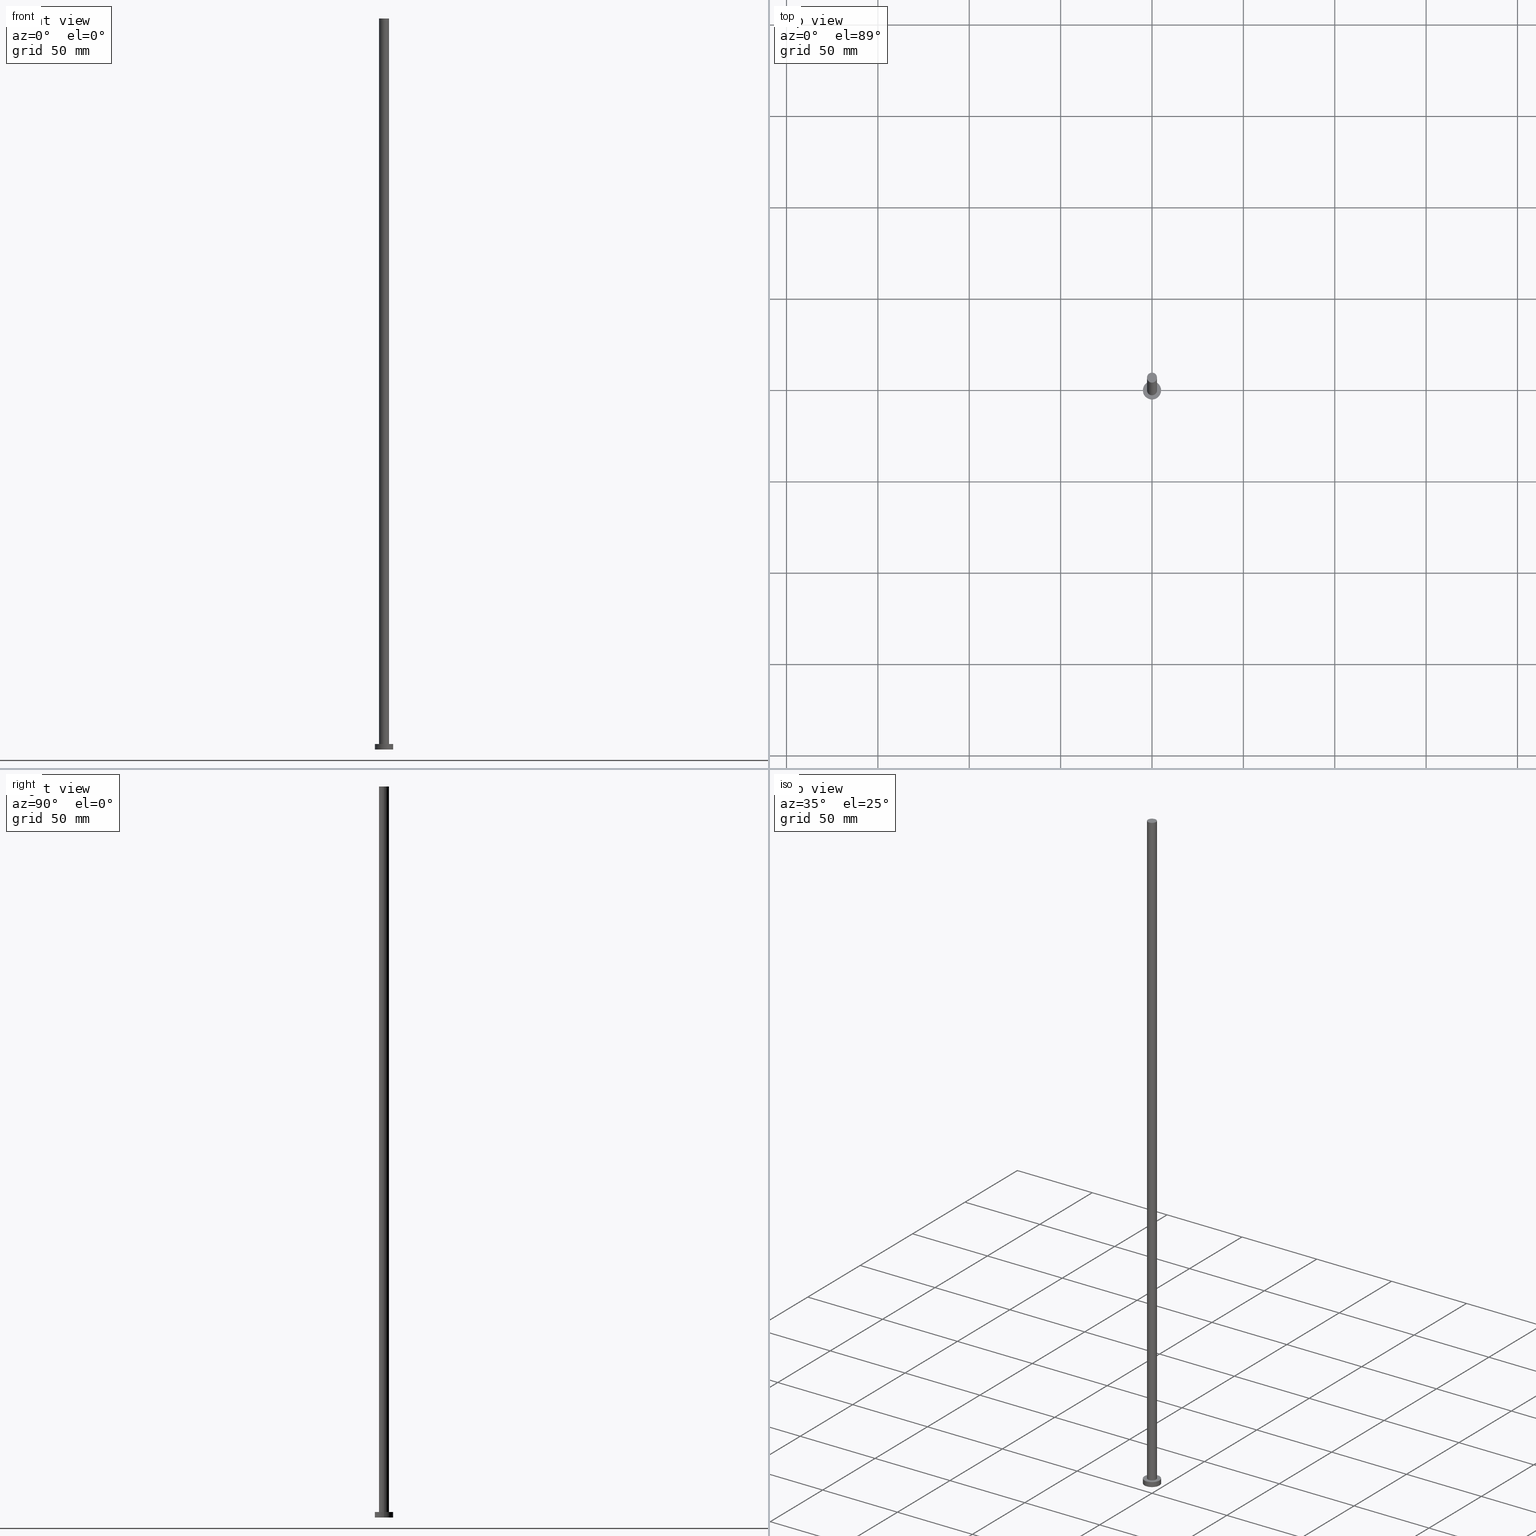
[diagram: canonical four-view strip — front | top / right | iso, engineering-drawing reading convention]
A machine part, canonical four-view strip (front | top / right | iso — engineering-drawing reading convention). The complete STEP part file that produces these views, byte-faithful:
ISO-10303-21;
HEADER;
FILE_DESCRIPTION (( 'STEP AP203' ),
    '1' );
FILE_NAME ('a8be.STEP',
    '2023-02-12T12:21:04',
    ( '' ),
    ( '' ),
    'SwSTEP 2.0',
    'SolidWorks 2019',
    '' );
FILE_SCHEMA (( 'CONFIG_CONTROL_DESIGN' ));
ENDSEC;

DATA;
#1 = ORIENTED_EDGE ( 'NONE', *, *, #108, .T. ) ;
#2 = DIRECTION ( 'NONE',  ( 1.000000000000000000, 0.000000000000000000, -0.000000000000000000 ) ) ;
#3 = CC_DESIGN_PERSON_AND_ORGANIZATION_ASSIGNMENT ( #64, #183, ( #40 ) ) ;
#4 = DIRECTION ( 'NONE',  ( 1.000000000000000000, 0.000000000000000000, 0.000000000000000000 ) ) ;
#5 = PERSON_AND_ORGANIZATION_ROLE ( 'classification_officer' ) ;
#6 = CARTESIAN_POINT ( 'NONE',  ( 0.000000000000000000, 0.000000000000000000, 0.000000000000000000 ) ) ;
#7 = PERSON_AND_ORGANIZATION_ROLE ( 'creator' ) ;
#8 = DIRECTION ( 'NONE',  ( 0.000000000000000000, 0.000000000000000000, 1.000000000000000000 ) ) ;
#9 = COORDINATED_UNIVERSAL_TIME_OFFSET ( 1, 0, .AHEAD. ) ;
#10 = DIRECTION ( 'NONE',  ( 1.000000000000000000, 0.000000000000000000, 0.000000000000000000 ) ) ;
#11 = VECTOR ( 'NONE', #160, 1000.000000000000000 ) ;
#12 = CC_DESIGN_APPROVAL ( #148, ( #72 ) ) ;
#13 = APPLICATION_CONTEXT ( 'configuration controlled 3d designs of mechanical parts and assemblies' ) ;
#14 = APPROVAL ( #82, 'NEUR�EN�' ) ;
#15 = CARTESIAN_POINT ( 'NONE',  ( -5.000000000000000000, 0.000000000000000000, 0.000000000000000000 ) ) ;
#16 = FACE_OUTER_BOUND ( 'NONE', #208, .T. ) ;
#17 = CC_DESIGN_PERSON_AND_ORGANIZATION_ASSIGNMENT ( #179, #7, ( #40 ) ) ;
#18 = DIRECTION ( 'NONE',  ( 0.000000000000000000, 0.000000000000000000, 1.000000000000000000 ) ) ;
#19 = AXIS2_PLACEMENT_3D ( 'NONE', #33, #105, #58 ) ;
#20 = DIRECTION ( 'NONE',  ( 1.000000000000000000, 0.000000000000000000, -0.000000000000000000 ) ) ;
#21 = APPLICATION_PROTOCOL_DEFINITION ( 'international standard', 'config_control_design', 1994, #13 ) ;
#22 = DIRECTION ( 'NONE',  ( -0.000000000000000000, -0.000000000000000000, -1.000000000000000000 ) ) ;
#23 = PLANE ( 'NONE',  #88 ) ;
#24 = APPROVAL_DATE_TIME ( #167, #148 ) ;
#25 = DATE_AND_TIME ( #178, #140 ) ;
#26 = DATE_AND_TIME ( #202, #177 ) ;
#27 = APPROVAL_STATUS ( 'not_yet_approved' ) ;
#28 = ORIENTED_EDGE ( 'NONE', *, *, #164, .T. ) ;
#29 = EDGE_LOOP ( 'NONE', ( #213, #28 ) ) ;
#30 = DESIGN_CONTEXT ( 'detailed design', #53, 'design' ) ;
#31 = CYLINDRICAL_SURFACE ( 'NONE', #255, 2.750000000000000000 ) ;
#32 = CC_DESIGN_APPROVAL ( #14, ( #40 ) ) ;
#33 = CARTESIAN_POINT ( 'NONE',  ( 0.000000000000000000, 0.000000000000000000, 3.000000000000000000 ) ) ;
#34 = DIRECTION ( 'NONE',  ( 1.000000000000000000, 0.000000000000000000, 0.000000000000000000 ) ) ;
#35 = DIRECTION ( 'NONE',  ( 1.000000000000000000, 0.000000000000000000, 0.000000000000000000 ) ) ;
#36 = CARTESIAN_POINT ( 'NONE',  ( 2.750000000000000000, 3.367778697655221012E-16, 400.0000000000000000 ) ) ;
#37 = FACE_OUTER_BOUND ( 'NONE', #188, .T. ) ;
#38 = EDGE_LOOP ( 'NONE', ( #133, #196, #110, #253 ) ) ;
#39 = FACE_OUTER_BOUND ( 'NONE', #38, .T. ) ;
#40 = PRODUCT_DEFINITION_FORMATION_WITH_SPECIFIED_SOURCE ( 'LIBOVOLN�', '', #146, .NOT_KNOWN. ) ;
#41 = DIRECTION ( 'NONE',  ( -1.000000000000000000, 0.000000000000000000, 0.000000000000000000 ) ) ;
#42 = DIRECTION ( 'NONE',  ( 0.000000000000000000, 0.000000000000000000, 1.000000000000000000 ) ) ;
#43 = AXIS2_PLACEMENT_3D ( 'NONE', #182, #245, #190 ) ;
#44 = EDGE_CURVE ( 'NONE', #139, #128, #239, .T. ) ;
#45 = COORDINATED_UNIVERSAL_TIME_OFFSET ( 1, 0, .AHEAD. ) ;
#46 = ORIENTED_EDGE ( 'NONE', *, *, #115, .T. ) ;
#47 = DIRECTION ( 'NONE',  ( 0.000000000000000000, 0.000000000000000000, 1.000000000000000000 ) ) ;
#48 = APPROVAL_DATE_TIME ( #222, #54 ) ;
#49 = CARTESIAN_POINT ( 'NONE',  ( 5.000000000000000000, 6.123233995736766282E-16, 3.000000000000000000 ) ) ;
#50 = PERSON_AND_ORGANIZATION ( #130, #216 ) ;
#51 = COORDINATED_UNIVERSAL_TIME_OFFSET ( 1, 0, .AHEAD. ) ;
#52 = ORIENTED_EDGE ( 'NONE', *, *, #115, .F. ) ;
#53 = APPLICATION_CONTEXT ( 'configuration controlled 3d designs of mechanical parts and assemblies' ) ;
#54 = APPROVAL ( #243, 'NEUR�EN�' ) ;
#55 =( GEOMETRIC_REPRESENTATION_CONTEXT ( 3 ) GLOBAL_UNCERTAINTY_ASSIGNED_CONTEXT ( ( #77 ) ) GLOBAL_UNIT_ASSIGNED_CONTEXT ( ( #194, #93, #136 ) ) REPRESENTATION_CONTEXT ( 'NONE', 'WORKASPACE' ) );
#56 = DIRECTION ( 'NONE',  ( -0.000000000000000000, -0.000000000000000000, -1.000000000000000000 ) ) ;
#57 = CARTESIAN_POINT ( 'NONE',  ( 2.750000000000000000, 3.367778697655221012E-16, 400.0000000000000000 ) ) ;
#58 = DIRECTION ( 'NONE',  ( 1.000000000000000000, 0.000000000000000000, 0.000000000000000000 ) ) ;
#59 = LINE ( 'NONE', #113, #65 ) ;
#60 = CLOSED_SHELL ( 'NONE', ( #81, #207, #199, #254, #247, #203, #158 ) ) ;
#61 = AXIS2_PLACEMENT_3D ( 'NONE', #97, #42, #2 ) ;
#62 = DIRECTION ( 'NONE',  ( 0.000000000000000000, 0.000000000000000000, 1.000000000000000000 ) ) ;
#63 = EDGE_CURVE ( 'NONE', #128, #92, #157, .T. ) ;
#64 = PERSON_AND_ORGANIZATION ( #130, #216 ) ;
#65 = VECTOR ( 'NONE', #214, 1000.000000000000000 ) ;
#66 = VERTEX_POINT ( 'NONE', #232 ) ;
#67 = CALENDAR_DATE ( 2023, 12, 2 ) ;
#68 = EDGE_CURVE ( 'NONE', #142, #215, #59, .T. ) ;
#69 = COORDINATED_UNIVERSAL_TIME_OFFSET ( 1, 0, .AHEAD. ) ;
#70 = DATE_AND_TIME ( #101, #211 ) ;
#71 = EDGE_LOOP ( 'NONE', ( #120, #153, #248, #1 ) ) ;
#72 = PRODUCT_DEFINITION ( 'NEZN�M�', '', #40, #30 ) ;
#73 = FACE_OUTER_BOUND ( 'NONE', #71, .T. ) ;
#74 = FACE_OUTER_BOUND ( 'NONE', #85, .T. ) ;
#75 = AXIS2_PLACEMENT_3D ( 'NONE', #172, #155, #34 ) ;
#76 = LOCAL_TIME ( 13, 21, 4.000000000000000000, #224 ) ;
#77 = UNCERTAINTY_MEASURE_WITH_UNIT (LENGTH_MEASURE( 1.000000000000000082E-05 ), #194, 'distance_accuracy_value', 'NONE');
#78 = CARTESIAN_POINT ( 'NONE',  ( 5.000000000000000000, 6.123233995736766282E-16, 0.000000000000000000 ) ) ;
#79 = CARTESIAN_POINT ( 'NONE',  ( 0.000000000000000000, 0.000000000000000000, 400.0000000000000000 ) ) ;
#80 = CARTESIAN_POINT ( 'NONE',  ( -5.000000000000000000, 0.000000000000000000, 3.000000000000000000 ) ) ;
#81 = ADVANCED_FACE ( 'NONE', ( #16 ), #174, .T. ) ;
#82 = APPROVAL_STATUS ( 'not_yet_approved' ) ;
#83 = CIRCLE ( 'NONE', #43, 2.750000000000000000 ) ;
#84 = CC_DESIGN_APPROVAL ( #54, ( #111 ) ) ;
#85 = EDGE_LOOP ( 'NONE', ( #210, #122 ) ) ;
#86 = SHAPE_DEFINITION_REPRESENTATION ( #103, #137 ) ;
#87 = CIRCLE ( 'NONE', #165, 5.000000000000000000 ) ;
#88 = AXIS2_PLACEMENT_3D ( 'NONE', #163, #197, #20 ) ;
#89 = CARTESIAN_POINT ( 'NONE',  ( 0.000000000000000000, 0.000000000000000000, 3.000000000000000000 ) ) ;
#90 = EDGE_CURVE ( 'NONE', #128, #139, #204, .T. ) ;
#91 = DIRECTION ( 'NONE',  ( -0.000000000000000000, -0.000000000000000000, -1.000000000000000000 ) ) ;
#92 = VERTEX_POINT ( 'NONE', #168 ) ;
#93 =( NAMED_UNIT ( * ) PLANE_ANGLE_UNIT ( ) SI_UNIT ( $, .RADIAN. ) );
#94 = VERTEX_POINT ( 'NONE', #15 ) ;
#95 = AXIS2_PLACEMENT_3D ( 'NONE', #89, #212, #35 ) ;
#96 = CC_DESIGN_PERSON_AND_ORGANIZATION_ASSIGNMENT ( #121, #5, ( #111 ) ) ;
#97 = CARTESIAN_POINT ( 'NONE',  ( 0.000000000000000000, 0.000000000000000000, 0.000000000000000000 ) ) ;
#98 = EDGE_LOOP ( 'NONE', ( #184, #218, #46, #236 ) ) ;
#99 = EDGE_CURVE ( 'NONE', #221, #142, #129, .T. ) ;
#100 = PERSON_AND_ORGANIZATION ( #130, #216 ) ;
#101 = CALENDAR_DATE ( 2023, 12, 2 ) ;
#102 = DATE_TIME_ROLE ( 'classification_date' ) ;
#103 = PRODUCT_DEFINITION_SHAPE ( 'NONE', 'NONE',  #72 ) ;
#104 = LOCAL_TIME ( 13, 21, 4.000000000000000000, #69 ) ;
#105 = DIRECTION ( 'NONE',  ( 0.000000000000000000, 0.000000000000000000, 1.000000000000000000 ) ) ;
#106 = PERSON_AND_ORGANIZATION_ROLE ( 'creator' ) ;
#107 = ORIENTED_EDGE ( 'NONE', *, *, #143, .F. ) ;
#108 = EDGE_CURVE ( 'NONE', #94, #215, #87, .T. ) ;
#109 = CARTESIAN_POINT ( 'NONE',  ( 0.000000000000000000, 0.000000000000000000, 400.0000000000000000 ) ) ;
#110 = ORIENTED_EDGE ( 'NONE', *, *, #225, .T. ) ;
#111 = SECURITY_CLASSIFICATION ( '', '', #141 ) ;
#112 = DIRECTION ( 'NONE',  ( 0.000000000000000000, 0.000000000000000000, 1.000000000000000000 ) ) ;
#113 = CARTESIAN_POINT ( 'NONE',  ( 5.000000000000000000, 6.123233995736766282E-16, 3.000000000000000000 ) ) ;
#114 = FACE_OUTER_BOUND ( 'NONE', #98, .T. ) ;
#115 = EDGE_CURVE ( 'NONE', #139, #66, #252, .T. ) ;
#116 = DIRECTION ( 'NONE',  ( -0.000000000000000000, -0.000000000000000000, -1.000000000000000000 ) ) ;
#117 = CIRCLE ( 'NONE', #226, 2.750000000000000000 ) ;
#118 = PLANE ( 'NONE',  #61 ) ;
#119 = APPROVAL_PERSON_ORGANIZATION ( #242, #148, #149 ) ;
#120 = ORIENTED_EDGE ( 'NONE', *, *, #68, .F. ) ;
#121 = PERSON_AND_ORGANIZATION ( #130, #216 ) ;
#122 = ORIENTED_EDGE ( 'NONE', *, *, #90, .T. ) ;
#123 = APPLICATION_PROTOCOL_DEFINITION ( 'international standard', 'config_control_design', 1994, #53 ) ;
#124 = VECTOR ( 'NONE', #200, 1000.000000000000000 ) ;
#125 = CARTESIAN_POINT ( 'NONE',  ( 0.000000000000000000, 0.000000000000000000, 3.000000000000000000 ) ) ;
#126 = APPROVAL_ROLE ( '' ) ;
#127 = CARTESIAN_POINT ( 'NONE',  ( -2.750000000000000000, 0.000000000000000000, 400.0000000000000000 ) ) ;
#128 = VERTEX_POINT ( 'NONE', #57 ) ;
#129 = CIRCLE ( 'NONE', #19, 5.000000000000000000 ) ;
#130 = PERSON ( 'NEUR�EN�', 'NEUR�EN�', 'NEUR�EN�', ('NEUR�EN�'), ('NEUR�EN�'), ('NEUR�EN�') ) ;
#131 = AXIS2_PLACEMENT_3D ( 'NONE', #228, #56, #132 ) ;
#132 = DIRECTION ( 'NONE',  ( -1.000000000000000000, 0.000000000000000000, 0.000000000000000000 ) ) ;
#133 = ORIENTED_EDGE ( 'NONE', *, *, #164, .F. ) ;
#134 = CARTESIAN_POINT ( 'NONE',  ( 0.000000000000000000, 0.000000000000000000, 0.000000000000000000 ) ) ;
#135 = CARTESIAN_POINT ( 'NONE',  ( 0.000000000000000000, 0.000000000000000000, 400.0000000000000000 ) ) ;
#136 =( NAMED_UNIT ( * ) SI_UNIT ( $, .STERADIAN. ) SOLID_ANGLE_UNIT ( ) );
#137 = ADVANCED_BREP_SHAPE_REPRESENTATION ( 'a8be', ( #234, #205 ), #55 ) ;
#138 = CARTESIAN_POINT ( 'NONE',  ( 0.000000000000000000, 0.000000000000000000, 3.000000000000000000 ) ) ;
#139 = VERTEX_POINT ( 'NONE', #127 ) ;
#140 = LOCAL_TIME ( 13, 21, 4.000000000000000000, #51 ) ;
#141 = SECURITY_CLASSIFICATION_LEVEL ( 'unclassified' ) ;
#142 = VERTEX_POINT ( 'NONE', #49 ) ;
#143 = EDGE_CURVE ( 'NONE', #66, #92, #83, .T. ) ;
#144 = APPROVAL_DATE_TIME ( #70, #14 ) ;
#145 = ORIENTED_EDGE ( 'NONE', *, *, #150, .T. ) ;
#146 = PRODUCT ( 'a8be', 'a8be', '', ( #223 ) ) ;
#147 = CALENDAR_DATE ( 2023, 12, 2 ) ;
#148 = APPROVAL ( #27, 'NEUR�EN�' ) ;
#149 = APPROVAL_ROLE ( '' ) ;
#150 = EDGE_CURVE ( 'NONE', #92, #66, #117, .T. ) ;
#151 = DIRECTION ( 'NONE',  ( 1.000000000000000000, 0.000000000000000000, -0.000000000000000000 ) ) ;
#152 = APPROVAL_ROLE ( '' ) ;
#153 = ORIENTED_EDGE ( 'NONE', *, *, #99, .F. ) ;
#154 = CYLINDRICAL_SURFACE ( 'NONE', #131, 5.000000000000000000 ) ;
#155 = DIRECTION ( 'NONE',  ( 0.000000000000000000, 0.000000000000000000, 1.000000000000000000 ) ) ;
#156 = PLANE ( 'NONE',  #186 ) ;
#157 = LINE ( 'NONE', #36, #11 ) ;
#158 = ADVANCED_FACE ( 'NONE', ( #74 ), #156, .T. ) ;
#159 = CYLINDRICAL_SURFACE ( 'NONE', #166, 5.000000000000000000 ) ;
#160 = DIRECTION ( 'NONE',  ( -0.000000000000000000, -0.000000000000000000, -1.000000000000000000 ) ) ;
#161 = ORIENTED_EDGE ( 'NONE', *, *, #108, .F. ) ;
#162 = CARTESIAN_POINT ( 'NONE',  ( 0.000000000000000000, 0.000000000000000000, 0.000000000000000000 ) ) ;
#163 = CARTESIAN_POINT ( 'NONE',  ( 0.000000000000000000, 0.000000000000000000, 3.000000000000000000 ) ) ;
#164 = EDGE_CURVE ( 'NONE', #142, #221, #219, .T. ) ;
#165 = AXIS2_PLACEMENT_3D ( 'NONE', #134, #112, #173 ) ;
#166 = AXIS2_PLACEMENT_3D ( 'NONE', #138, #22, #235 ) ;
#167 = DATE_AND_TIME ( #67, #104 ) ;
#168 = CARTESIAN_POINT ( 'NONE',  ( 2.750000000000000000, 3.367778697655221012E-16, 3.000000000000000000 ) ) ;
#169 = AXIS2_PLACEMENT_3D ( 'NONE', #162, #62, #176 ) ;
#170 = CC_DESIGN_DATE_AND_TIME_ASSIGNMENT ( #25, #206, ( #72 ) ) ;
#171 = DIRECTION ( 'NONE',  ( -1.000000000000000000, 0.000000000000000000, 0.000000000000000000 ) ) ;
#172 = CARTESIAN_POINT ( 'NONE',  ( 0.000000000000000000, 0.000000000000000000, 400.0000000000000000 ) ) ;
#173 = DIRECTION ( 'NONE',  ( 1.000000000000000000, 0.000000000000000000, 0.000000000000000000 ) ) ;
#174 = CYLINDRICAL_SURFACE ( 'NONE', #250, 2.750000000000000000 ) ;
#175 = FACE_BOUND ( 'NONE', #229, .T. ) ;
#176 = DIRECTION ( 'NONE',  ( 1.000000000000000000, 0.000000000000000000, 0.000000000000000000 ) ) ;
#177 = LOCAL_TIME ( 13, 21, 4.000000000000000000, #9 ) ;
#178 = CALENDAR_DATE ( 2023, 12, 2 ) ;
#179 = PERSON_AND_ORGANIZATION ( #130, #216 ) ;
#180 = PERSON_AND_ORGANIZATION ( #130, #216 ) ;
#181 = PRODUCT_RELATED_PRODUCT_CATEGORY ( 'detail', '', ( #146 ) ) ;
#182 = CARTESIAN_POINT ( 'NONE',  ( 0.000000000000000000, 0.000000000000000000, 3.000000000000000000 ) ) ;
#183 = PERSON_AND_ORGANIZATION_ROLE ( 'design_supplier' ) ;
#184 = ORIENTED_EDGE ( 'NONE', *, *, #63, .F. ) ;
#185 = DIRECTION ( 'NONE',  ( 0.000000000000000000, 0.000000000000000000, 1.000000000000000000 ) ) ;
#186 = AXIS2_PLACEMENT_3D ( 'NONE', #135, #18, #151 ) ;
#187 = CC_DESIGN_PERSON_AND_ORGANIZATION_ASSIGNMENT ( #220, #201, ( #146 ) ) ;
#188 = EDGE_LOOP ( 'NONE', ( #161, #195 ) ) ;
#189 = ORIENTED_EDGE ( 'NONE', *, *, #150, .F. ) ;
#190 = DIRECTION ( 'NONE',  ( 1.000000000000000000, 0.000000000000000000, 0.000000000000000000 ) ) ;
#191 = VECTOR ( 'NONE', #209, 1000.000000000000000 ) ;
#192 = CARTESIAN_POINT ( 'NONE',  ( -5.000000000000000000, 0.000000000000000000, 3.000000000000000000 ) ) ;
#193 = APPROVAL_PERSON_ORGANIZATION ( #50, #14, #126 ) ;
#194 =( LENGTH_UNIT ( ) NAMED_UNIT ( * ) SI_UNIT ( .MILLI., .METRE. ) );
#195 = ORIENTED_EDGE ( 'NONE', *, *, #225, .F. ) ;
#196 = ORIENTED_EDGE ( 'NONE', *, *, #68, .T. ) ;
#197 = DIRECTION ( 'NONE',  ( 0.000000000000000000, 0.000000000000000000, 1.000000000000000000 ) ) ;
#198 = AXIS2_PLACEMENT_3D ( 'NONE', #79, #8, #230 ) ;
#199 = ADVANCED_FACE ( 'NONE', ( #73 ), #154, .T. ) ;
#200 = DIRECTION ( 'NONE',  ( -0.000000000000000000, -0.000000000000000000, -1.000000000000000000 ) ) ;
#201 = PERSON_AND_ORGANIZATION_ROLE ( 'design_owner' ) ;
#202 = CALENDAR_DATE ( 2023, 12, 2 ) ;
#203 = ADVANCED_FACE ( 'NONE', ( #114 ), #31, .T. ) ;
#204 = CIRCLE ( 'NONE', #198, 2.750000000000000000 ) ;
#205 = AXIS2_PLACEMENT_3D ( 'NONE', #6, #47, #4 ) ;
#206 = DATE_TIME_ROLE ( 'creation_date' ) ;
#207 = ADVANCED_FACE ( 'NONE', ( #39 ), #159, .T. ) ;
#208 = EDGE_LOOP ( 'NONE', ( #240, #251, #145, #52 ) ) ;
#209 = DIRECTION ( 'NONE',  ( -0.000000000000000000, -0.000000000000000000, -1.000000000000000000 ) ) ;
#210 = ORIENTED_EDGE ( 'NONE', *, *, #44, .T. ) ;
#211 = LOCAL_TIME ( 13, 21, 4.000000000000000000, #45 ) ;
#212 = DIRECTION ( 'NONE',  ( 0.000000000000000000, 0.000000000000000000, 1.000000000000000000 ) ) ;
#213 = ORIENTED_EDGE ( 'NONE', *, *, #99, .T. ) ;
#214 = DIRECTION ( 'NONE',  ( -0.000000000000000000, -0.000000000000000000, -1.000000000000000000 ) ) ;
#215 = VERTEX_POINT ( 'NONE', #78 ) ;
#216 = ORGANIZATION ( 'NEUR�EN�', 'NEUR�EN�', '' ) ;
#217 = LINE ( 'NONE', #80, #124 ) ;
#218 = ORIENTED_EDGE ( 'NONE', *, *, #44, .F. ) ;
#219 = CIRCLE ( 'NONE', #95, 5.000000000000000000 ) ;
#220 = PERSON_AND_ORGANIZATION ( #130, #216 ) ;
#221 = VERTEX_POINT ( 'NONE', #192 ) ;
#222 = DATE_AND_TIME ( #147, #76 ) ;
#223 = MECHANICAL_CONTEXT ( 'NONE', #13, 'mechanical' ) ;
#224 = COORDINATED_UNIVERSAL_TIME_OFFSET ( 1, 0, .AHEAD. ) ;
#225 = EDGE_CURVE ( 'NONE', #215, #94, #246, .T. ) ;
#226 = AXIS2_PLACEMENT_3D ( 'NONE', #125, #185, #10 ) ;
#227 = CC_DESIGN_SECURITY_CLASSIFICATION ( #111, ( #40 ) ) ;
#228 = CARTESIAN_POINT ( 'NONE',  ( 0.000000000000000000, 0.000000000000000000, 3.000000000000000000 ) ) ;
#229 = EDGE_LOOP ( 'NONE', ( #107, #189 ) ) ;
#230 = DIRECTION ( 'NONE',  ( 1.000000000000000000, 0.000000000000000000, 0.000000000000000000 ) ) ;
#231 = CARTESIAN_POINT ( 'NONE',  ( 0.000000000000000000, 0.000000000000000000, 400.0000000000000000 ) ) ;
#232 = CARTESIAN_POINT ( 'NONE',  ( -2.750000000000000000, 0.000000000000000000, 3.000000000000000000 ) ) ;
#233 = CC_DESIGN_PERSON_AND_ORGANIZATION_ASSIGNMENT ( #100, #106, ( #72 ) ) ;
#234 = MANIFOLD_SOLID_BREP ( 'P�idat vysunut�m3', #60 ) ;
#235 = DIRECTION ( 'NONE',  ( -1.000000000000000000, 0.000000000000000000, 0.000000000000000000 ) ) ;
#236 = ORIENTED_EDGE ( 'NONE', *, *, #143, .T. ) ;
#237 = CC_DESIGN_DATE_AND_TIME_ASSIGNMENT ( #26, #102, ( #111 ) ) ;
#238 = FACE_OUTER_BOUND ( 'NONE', #29, .T. ) ;
#239 = CIRCLE ( 'NONE', #75, 2.750000000000000000 ) ;
#240 = ORIENTED_EDGE ( 'NONE', *, *, #90, .F. ) ;
#241 = APPROVAL_PERSON_ORGANIZATION ( #180, #54, #152 ) ;
#242 = PERSON_AND_ORGANIZATION ( #130, #216 ) ;
#243 = APPROVAL_STATUS ( 'not_yet_approved' ) ;
#244 = CARTESIAN_POINT ( 'NONE',  ( -2.750000000000000000, 0.000000000000000000, 400.0000000000000000 ) ) ;
#245 = DIRECTION ( 'NONE',  ( 0.000000000000000000, 0.000000000000000000, 1.000000000000000000 ) ) ;
#246 = CIRCLE ( 'NONE', #169, 5.000000000000000000 ) ;
#247 = ADVANCED_FACE ( 'NONE', ( #37 ), #118, .F. ) ;
#248 = ORIENTED_EDGE ( 'NONE', *, *, #249, .T. ) ;
#249 = EDGE_CURVE ( 'NONE', #221, #94, #217, .T. ) ;
#250 = AXIS2_PLACEMENT_3D ( 'NONE', #231, #116, #41 ) ;
#251 = ORIENTED_EDGE ( 'NONE', *, *, #63, .T. ) ;
#252 = LINE ( 'NONE', #244, #191 ) ;
#253 = ORIENTED_EDGE ( 'NONE', *, *, #249, .F. ) ;
#254 = ADVANCED_FACE ( 'NONE', ( #175, #238 ), #23, .T. ) ;
#255 = AXIS2_PLACEMENT_3D ( 'NONE', #109, #91, #171 ) ;
ENDSEC;
END-ISO-10303-21;
